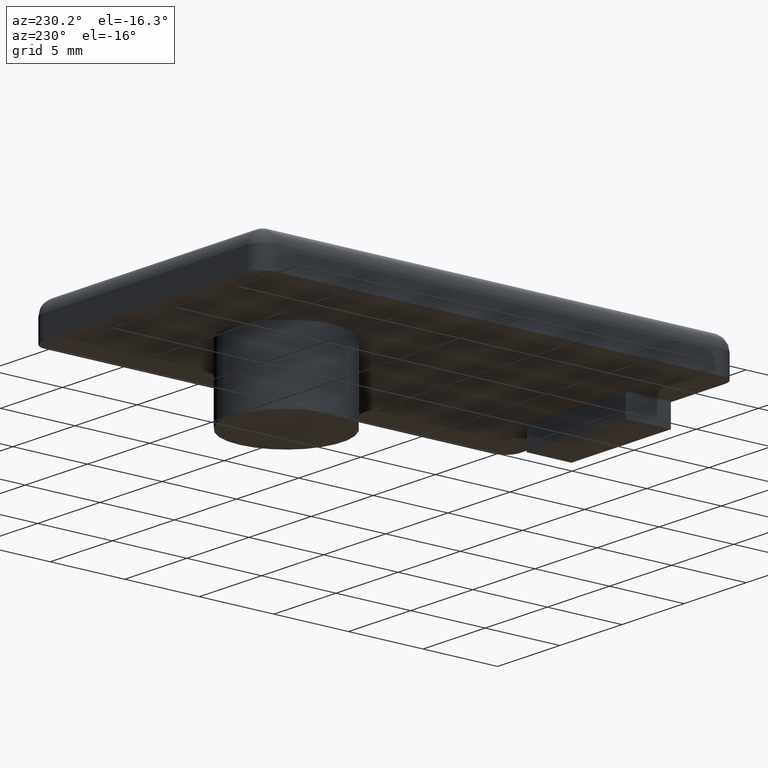
[diagram: clean part render]
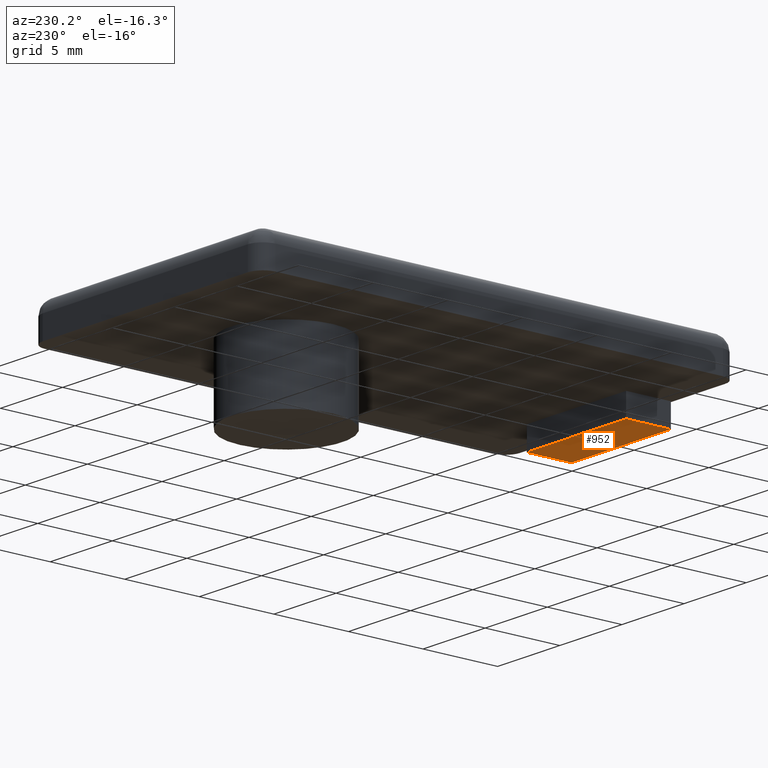
[diagram: same view with one face highlighted and labeled with its STEP entity id]
A machine part, auxiliary view. The second image highlights one B-rep face of the part: STEP entity #952.
In plain terms, the highlighted planar face has unit normal (0, 0, -1).
Its self-contained STEP definition (entity closure, byte-faithful):
#850=CARTESIAN_POINT('',(-3.999999999984084,-19.449999999922056,-1.499999999994088));
#851=VERTEX_POINT('',#850);
#859=CARTESIAN_POINT('',(3.999999999984084,-19.449999999922056,-1.499999999994088));
#860=VERTEX_POINT('',#859);
#867=CARTESIAN_POINT('',(-3.999999999984084,-19.449999999922056,-1.499999999994088));
#868=DIRECTION('',(1.0,0.0,0.0));
#869=VECTOR('',#868,7.999999999968168);
#870=LINE('',#867,#869);
#871=EDGE_CURVE('',#851,#860,#870,.T.);
#883=CARTESIAN_POINT('',(3.999999999984084,-22.449999999910233,-1.499999999994088));
#884=VERTEX_POINT('',#883);
#891=CARTESIAN_POINT('',(3.999999999984084,-19.449999999922056,-1.499999999994088));
#892=DIRECTION('',(0.0,-1.0,0.0));
#893=VECTOR('',#892,2.999999999988177);
#894=LINE('',#891,#893);
#895=EDGE_CURVE('',#860,#884,#894,.T.);
#907=CARTESIAN_POINT('',(-3.999999999984084,-22.449999999910233,-1.499999999994088));
#908=VERTEX_POINT('',#907);
#915=CARTESIAN_POINT('',(3.999999999984084,-22.449999999910233,-1.499999999994088));
#916=DIRECTION('',(-1.0,0.0,0.0));
#917=VECTOR('',#916,7.999999999968168);
#918=LINE('',#915,#917);
#919=EDGE_CURVE('',#884,#908,#918,.T.);
#929=CARTESIAN_POINT('',(-3.999999999984084,-22.449999999910233,-1.499999999994088));
#930=DIRECTION('',(0.0,1.0,0.0));
#931=VECTOR('',#930,2.999999999988177);
#932=LINE('',#929,#931);
#933=EDGE_CURVE('',#908,#851,#932,.T.);
#941=CARTESIAN_POINT('',(-4.800004724435439,-19.149995275476158,-1.499999999994088));
#942=DIRECTION('',(0.0,0.0,-1.0));
#943=DIRECTION('',(1.0,0.0,0.0));
#944=AXIS2_PLACEMENT_3D('',#941,#942,#943);
#945=PLANE('',#944);
#946=ORIENTED_EDGE('',*,*,#871,.T.);
#947=ORIENTED_EDGE('',*,*,#895,.T.);
#948=ORIENTED_EDGE('',*,*,#919,.T.);
#949=ORIENTED_EDGE('',*,*,#933,.T.);
#950=EDGE_LOOP('',(#946,#947,#948,#949));
#951=FACE_OUTER_BOUND('',#950,.T.);
#952=ADVANCED_FACE('',(#951),#945,.T.);